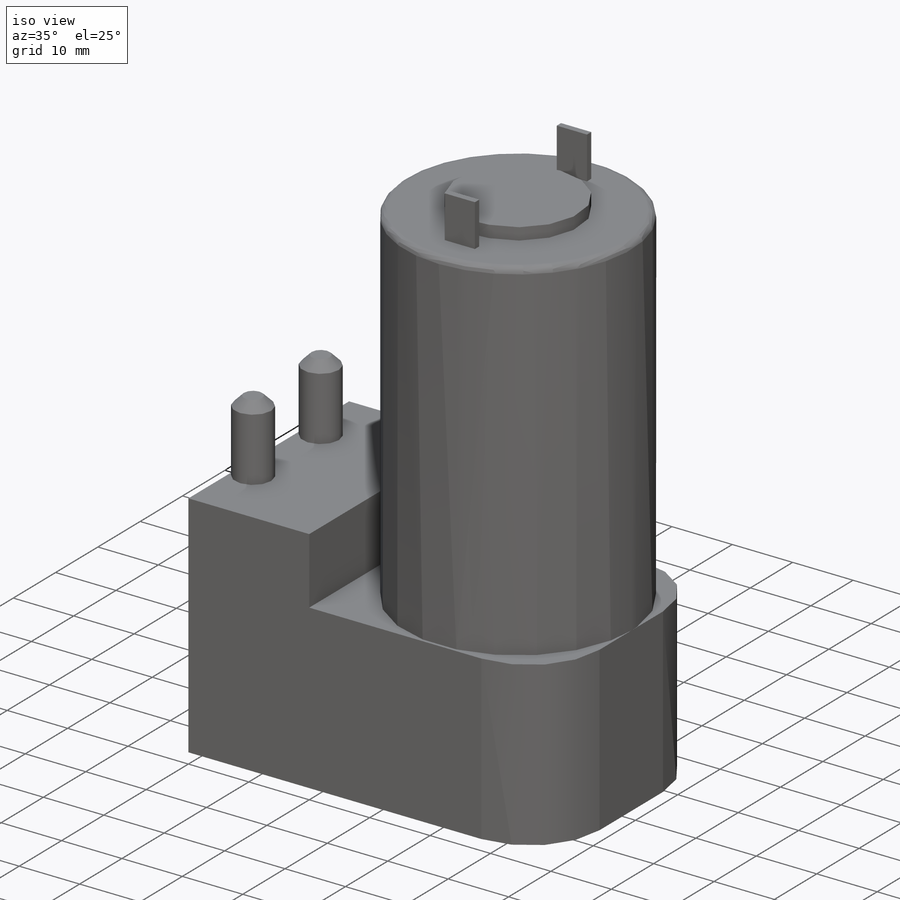
[diagram: iso view]
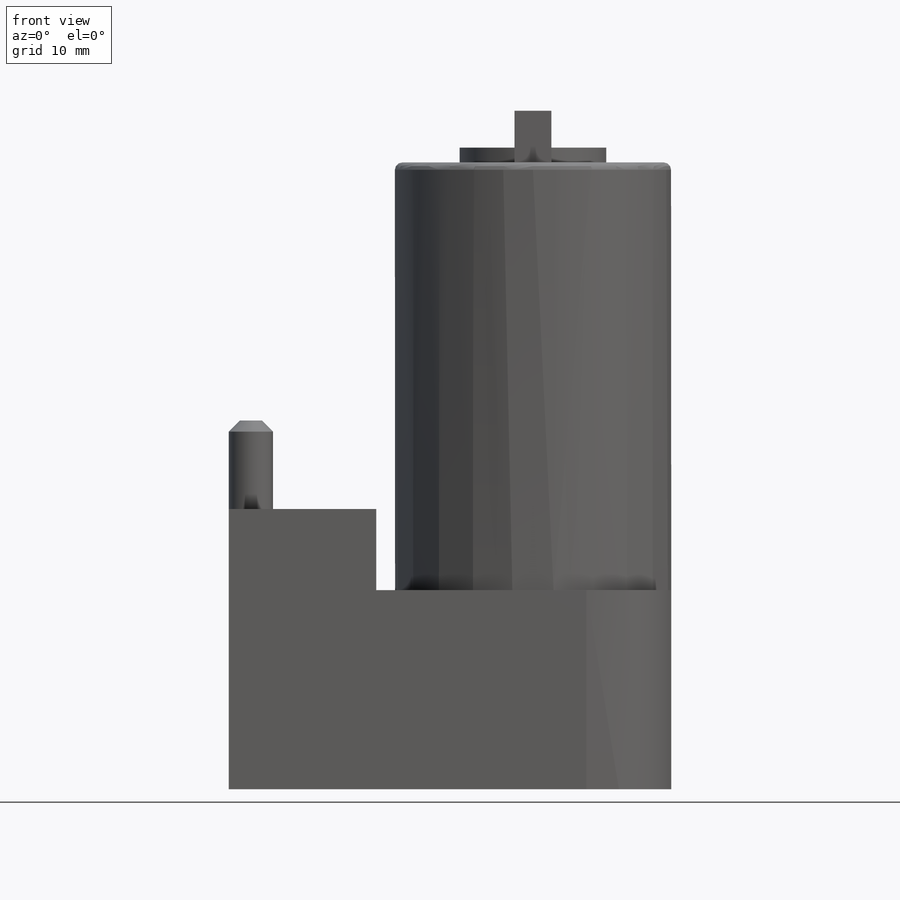
[diagram: front view]
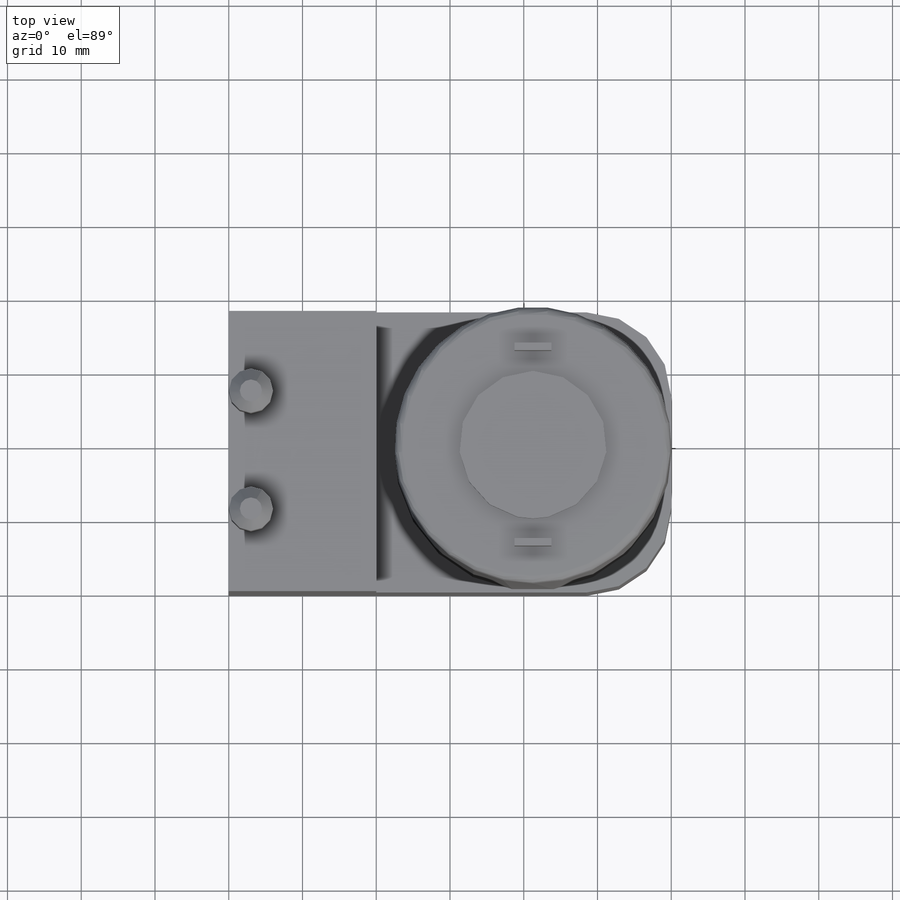
[diagram: top view]
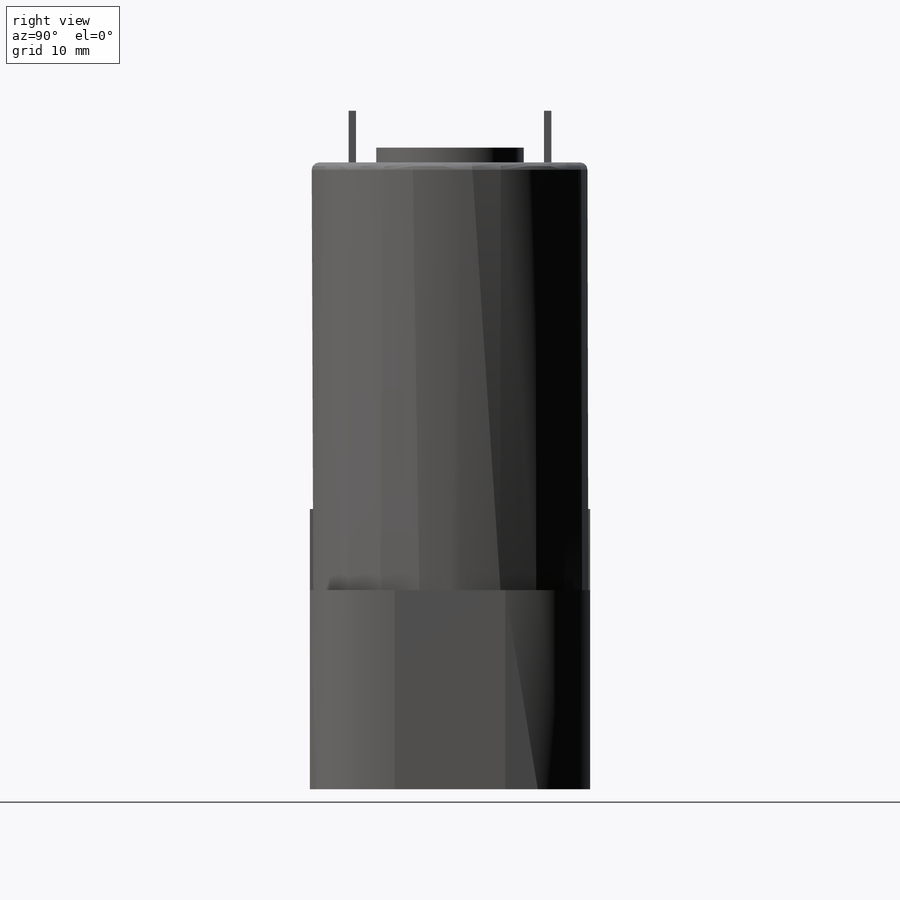
[diagram: right view]
SOLIDWORKS PART (.sldprt)
format: sldprt  version: not decoded by parser v0  size: 199,168 bytes
history: native  units: mm
features: sketch x6, extrude x6, plane x3, material x1, chamfer x1, fillet x1 (+9 scaffold rows collapsed)
feature tree (27):
  scaffold x9  (default folders/planes/origin — collapsed)
  material  "Material <not specified>"
  plane  "Face"
  plane  "Dessus"
  plane  "Droite"
  sketch  "Esquisse1"  dims[D1=38.0mm D2=60.0mm D3=15.0mm]
  extrude  "Extrusion1"  Depth=27mm
  sketch  "Esquisse2"  dims[D1=20.0mm]
  extrude  "Extrusion2"  Depth=11mm
  sketch  "Esquisse3"  dims[D1=37.5mm D2=18.75mm]
  extrude  "Extrusion3"  Depth=58mm
  sketch  "Esquisse4"  dims[D1=20.0mm]
  extrude  "Extrusion4"  Depth=2mm
  sketch  "Esquisse5"  dims[D1=6.0mm D2=8.0mm]
  extrude  "Extrusion5"  Depth=12mm
  chamfer  "Chanfrein1"  Distance=1.5mm Angle=45deg
  fillet  "Congé1"  Radius=1mm
  sketch  "Esquisse6"  dims[c1.D3=37.5mm c1.D1=1.0mm c1.D2=2.5mm c2.D3=5.0mm]
  extrude  "Extrusion6"  Depth=7mm
decode coverage: 14 of 14 modeling features carry decoded parameters
note: suppression state not decoded; provenance and decode notes live in map.json
